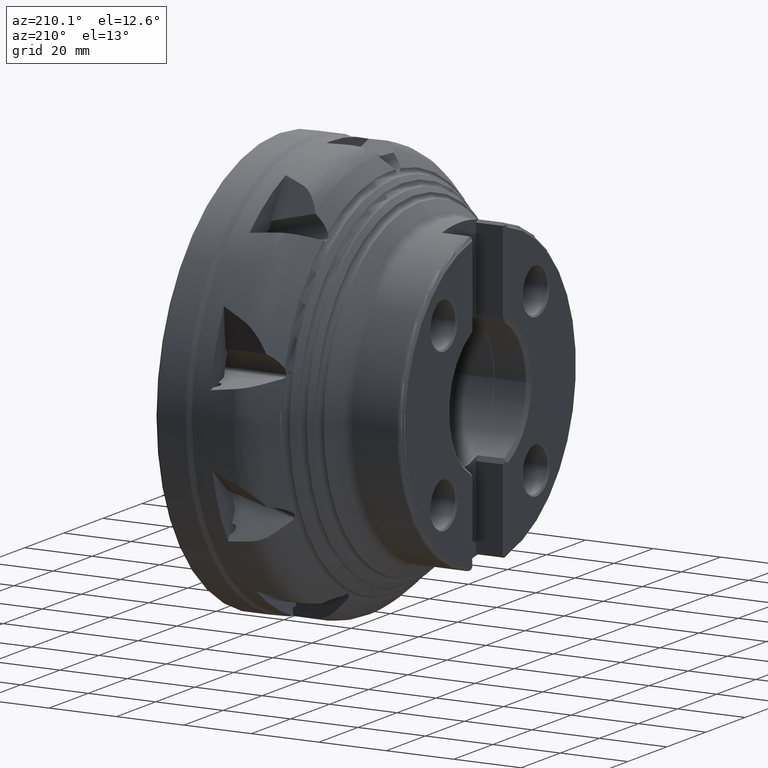
[diagram: clean part render]
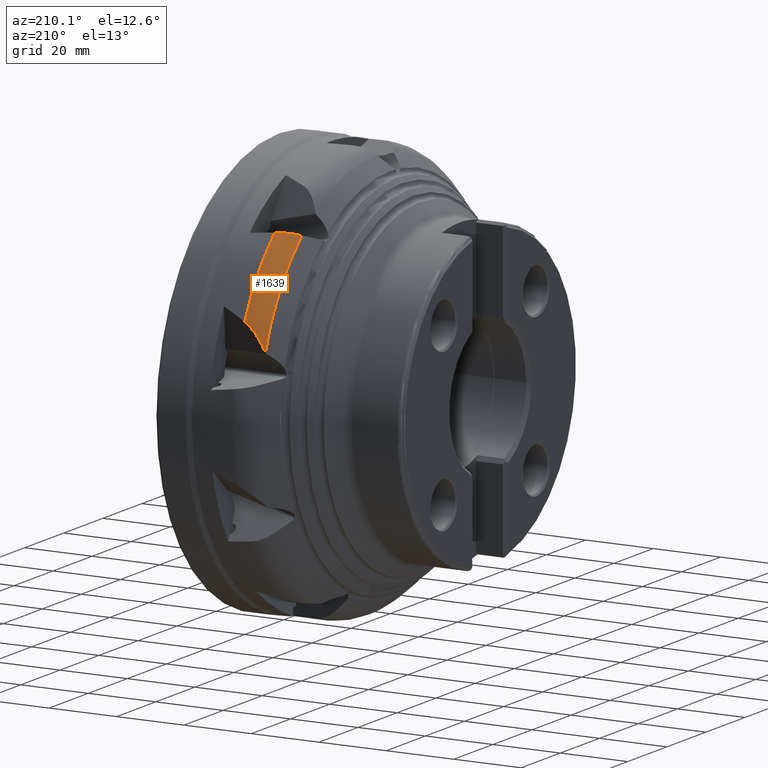
[diagram: same view with one face highlighted and labeled with its STEP entity id]
A machine part, auxiliary view. The second image highlights one B-rep face of the part: STEP entity #1639.
In plain terms, the highlighted toroidal blend (fillet) surface has major radius 52.075 mm and minor (blend) radius 10 mm.
Its self-contained STEP definition (entity closure, byte-faithful):
#1639 = ADVANCED_FACE ( 'NONE', ( #10066 ), #10070, .T. ) ;
#2123 = AXIS2_PLACEMENT_3D ( 'NONE', #15327, #15331, #15332 ) ;
#2569 = CIRCLE ( 'NONE', #2123, 59.75487436399001200 ) ;
#4209 = EDGE_CURVE ( 'NONE', #16504, #16055, #9747, .T. ) ;
#4223 = EDGE_CURVE ( 'NONE', #16505, #16427, #9757, .T. ) ;
#4996 = EDGE_CURVE ( 'NONE', #16505, #16504, #11306, .T. ) ;
#5350 = ORIENTED_EDGE ( 'NONE', *, *, #4996, .F. ) ;
#5351 = ORIENTED_EDGE ( 'NONE', *, *, #4223, .T. ) ;
#5352 = ORIENTED_EDGE ( 'NONE', *, *, #9142, .T. ) ;
#5353 = ORIENTED_EDGE ( 'NONE', *, *, #4209, .F. ) ;
#7005 = CARTESIAN_POINT ( 'NONE',  ( -27.40464907339421100, 37.99849730497320600, 46.11679968102920000 ) ) ;
#7467 = CARTESIAN_POINT ( 'NONE',  ( -27.40464907339419700, 56.63884536758109100, 19.04432213767319500 ) ) ;
#7608 = CARTESIAN_POINT ( 'NONE',  ( -20.99999999999999600, 40.86086540555300000, 46.73002571483652900 ) ) ;
#7610 = CARTESIAN_POINT ( 'NONE',  ( -21.00000000000000000, 56.24316025476657200, 26.26808994876954300 ) ) ;
#8300 = EDGE_LOOP ( 'NONE', ( #5350, #5351, #5352, #5353 ) ) ;
#9142 = EDGE_CURVE ( 'NONE', #16427, #16055, #2569, .T. ) ;
#9747 = B_SPLINE_CURVE_WITH_KNOTS ( 'NONE', 3,
 ( #10984, #10730, #10526, #10527, #10529, #10530, #10532, #10545, #10547, #10549, #10551, #10750 ),
 .UNSPECIFIED., .F., .F.,
 ( 4, 2, 2, 2, 2, 4 ),
 ( 1.991822544895440000E-007, 0.001787369879953114100, 0.002680955228802423200, 0.003574540577651732200, 0.005361711275350360500, 0.007148881973048987900 ),
 .UNSPECIFIED. ) ;
#9757 = B_SPLINE_CURVE_WITH_KNOTS ( 'NONE', 3,
 ( #11443, #11453, #11454, #11455, #11456, #11457, #11458, #11459, #11460, #11461, #11462, #11463 ),
 .UNSPECIFIED., .F., .F.,
 ( 4, 2, 2, 2, 2, 4 ),
 ( 2.190993381117823300E-007, 0.002457823513492637800, 0.003686625720569898300, 0.004915427927647159600, 0.007373032341801679700, 0.009830636755956200700 ),
 .UNSPECIFIED. ) ;
#9972 = AXIS2_PLACEMENT_3D ( 'NONE', #10567, #10726, #10728 ) ;
#10066 = FACE_OUTER_BOUND ( 'NONE', #8300, .T. ) ;
#10070 = TOROIDAL_SURFACE ( 'NONE', #9972, 52.07500000000000300, 10.00000000000000500 ) ;
#10526 = CARTESIAN_POINT ( 'NONE',  ( -22.18396119588490500, 40.67965525904263300, 46.81754026249128500 ) ) ;
#10527 = CARTESIAN_POINT ( 'NONE',  ( -23.04534853872955200, 40.44175184230397900, 46.81997481901459700 ) ) ;
#10529 = CARTESIAN_POINT ( 'NONE',  ( -23.32957457194358900, 40.35131215904592500, 46.81388437680132600 ) ) ;
#10530 = CARTESIAN_POINT ( 'NONE',  ( -23.89221817694940600, 40.14814688193204300, 46.78789410380114300 ) ) ;
#10532 = CARTESIAN_POINT ( 'NONE',  ( -24.17185768917790500, 40.03485199514127400, 46.76786389122860800 ) ) ;
#10545 = CARTESIAN_POINT ( 'NONE',  ( -24.99261558369519400, 39.66502992786404000, 46.68754172775558700 ) ) ;
#10547 = CARTESIAN_POINT ( 'NONE',  ( -25.51197197941297600, 39.38101399089308100, 46.60784754462691400 ) ) ;
#10549 = CARTESIAN_POINT ( 'NONE',  ( -26.49840931812262900, 38.74256639075948500, 46.39932124468956000 ) ) ;
#10551 = CARTESIAN_POINT ( 'NONE',  ( -26.96743343840027100, 38.38627470912473400, 46.26973058953375800 ) ) ;
#10567 = CARTESIAN_POINT ( 'NONE',  ( -21.00000000000000000, 0.0000000000000000000, 0.0000000000000000000 ) ) ;
#10726 = DIRECTION ( 'NONE',  ( 1.000000000000000000, -0.0000000000000000000, -0.0000000000000000000 ) ) ;
#10728 = DIRECTION ( 'NONE',  ( 0.0000000000000000000, 0.0000000000000000000, -1.000000000000000000 ) ) ;
#10730 = CARTESIAN_POINT ( 'NONE',  ( -21.59816792617746400, 40.79399987946195700, 46.78849311818333900 ) ) ;
#10750 = CARTESIAN_POINT ( 'NONE',  ( -27.40464907339421100, 37.99849730497320600, 46.11679968102920000 ) ) ;
#10984 = CARTESIAN_POINT ( 'NONE',  ( -20.99999999999999600, 40.86086540555300000, 46.73002571483652900 ) ) ;
#11306 = CIRCLE ( 'NONE', #13004, 62.07500000000000300 ) ;
#11443 = CARTESIAN_POINT ( 'NONE',  ( -21.00000000000000000, 56.24316025476657200, 26.26808994876954300 ) ) ;
#11453 = CARTESIAN_POINT ( 'NONE',  ( -21.74778380111237700, 56.40092947146476400, 25.93028695832250500 ) ) ;
#11454 = CARTESIAN_POINT ( 'NONE',  ( -22.42799739903103900, 56.51442547463351900, 25.48697573593971900 ) ) ;
#11455 = CARTESIAN_POINT ( 'NONE',  ( -23.37733801328570100, 56.63816224803576200, 24.71117674538206200 ) ) ;
#11456 = CARTESIAN_POINT ( 'NONE',  ( -23.68263406598210000, 56.67152554951698600, 24.43255485219339800 ) ) ;
#11457 = CARTESIAN_POINT ( 'NONE',  ( -24.26685374520229000, 56.72352970890378300, 23.84572054881373000 ) ) ;
#11458 = CARTESIAN_POINT ( 'NONE',  ( -24.54303771097084700, 56.74198416348310300, 23.54052049041049000 ) ) ;
#11459 = CARTESIAN_POINT ( 'NONE',  ( -25.33137768753543300, 56.77829020541311400, 22.59516914954580000 ) ) ;
#11460 = CARTESIAN_POINT ( 'NONE',  ( -25.80370189440472800, 56.77726461675148800, 21.92554793440965700 ) ) ;
#11461 = CARTESIAN_POINT ( 'NONE',  ( -26.66537500803949000, 56.73588960293783900, 20.52491545230291000 ) ) ;
#11462 = CARTESIAN_POINT ( 'NONE',  ( -27.05470667201804600, 56.69520233703052300, 19.79239742451928300 ) ) ;
#11463 = CARTESIAN_POINT ( 'NONE',  ( -27.40464907339419700, 56.63884536758109100, 19.04432213767319500 ) ) ;
#13004 = AXIS2_PLACEMENT_3D ( 'NONE', #14459, #14460, #14461 ) ;
#14459 = CARTESIAN_POINT ( 'NONE',  ( -21.00000000000000000, 0.0000000000000000000, 0.0000000000000000000 ) ) ;
#14460 = DIRECTION ( 'NONE',  ( 1.000000000000000000, -0.0000000000000000000, -0.0000000000000000000 ) ) ;
#14461 = DIRECTION ( 'NONE',  ( 0.0000000000000000000, 0.0000000000000000000, -1.000000000000000000 ) ) ;
#15327 = CARTESIAN_POINT ( 'NONE',  ( -27.40464907339420400, 0.0000000000000000000, 0.0000000000000000000 ) ) ;
#15331 = DIRECTION ( 'NONE',  ( 1.000000000000000000, -0.0000000000000000000, -0.0000000000000000000 ) ) ;
#15332 = DIRECTION ( 'NONE',  ( 0.0000000000000000000, 0.0000000000000000000, -1.000000000000000000 ) ) ;
#16055 = VERTEX_POINT ( 'NONE', #7005 ) ;
#16427 = VERTEX_POINT ( 'NONE', #7467 ) ;
#16504 = VERTEX_POINT ( 'NONE', #7608 ) ;
#16505 = VERTEX_POINT ( 'NONE', #7610 ) ;